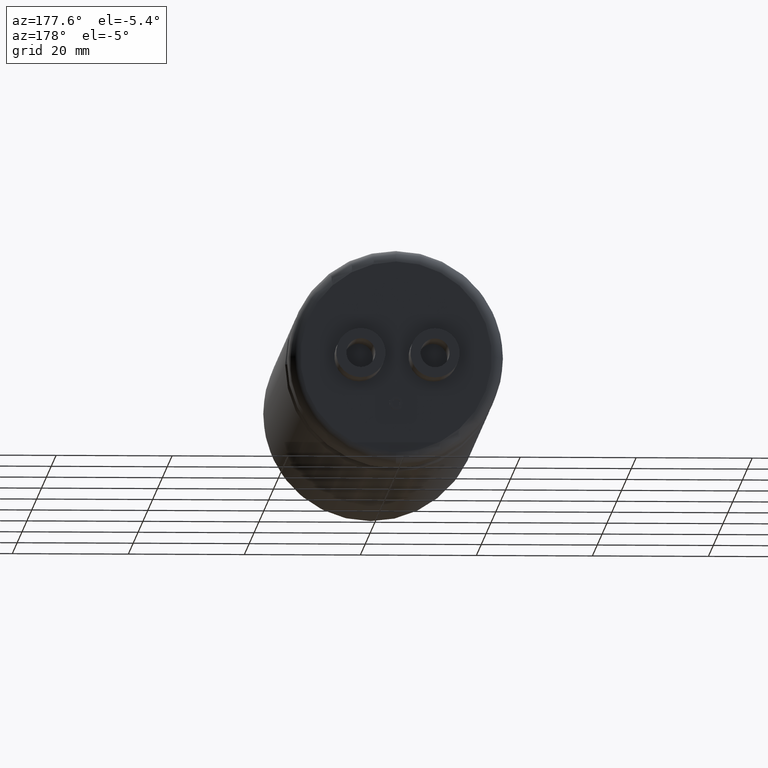
[diagram: clean part render]
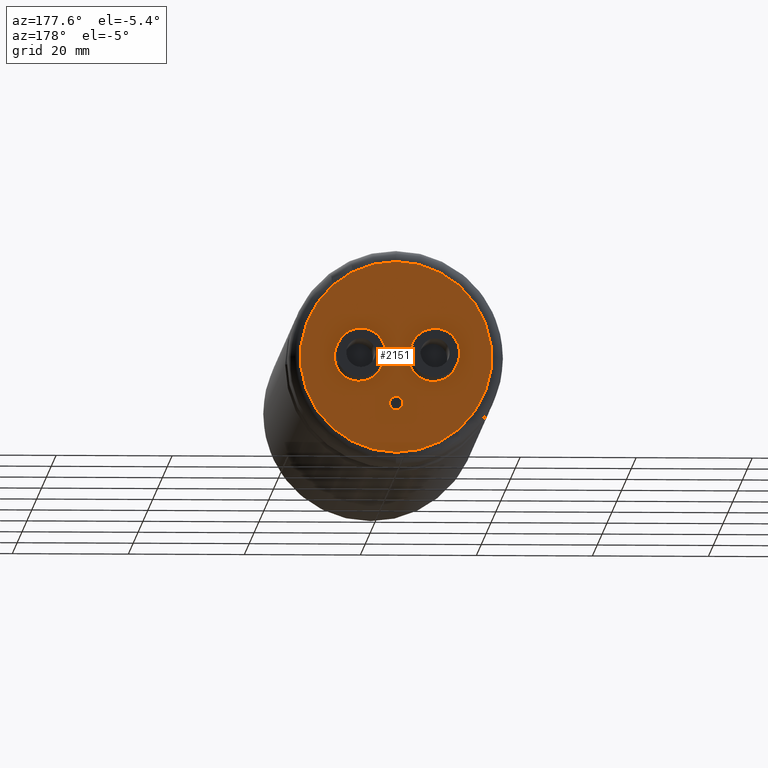
[diagram: same view with one face highlighted and labeled with its STEP entity id]
A machine part, auxiliary view. The second image highlights one B-rep face of the part: STEP entity #2151.
In plain terms, the highlighted planar face has unit normal (0, 1, 0).
Its self-contained STEP definition (entity closure, byte-faithful):
#114 = VERTEX_POINT ( 'NONE', #2407 ) ;
#154 = DIRECTION ( 'NONE',  ( 0.0000000000000000000, 1.000000000000000000, 0.0000000000000000000 ) ) ;
#242 = AXIS2_PLACEMENT_3D ( 'NONE', #2525, #564, #2856 ) ;
#252 = CIRCLE ( 'NONE', #1543, 4.250000000000000000 ) ;
#309 = EDGE_CURVE ( 'NONE', #114, #2955, #2364, .T. ) ;
#335 = VERTEX_POINT ( 'NONE', #3548 ) ;
#464 = DIRECTION ( 'NONE',  ( 0.0000000000000000000, 0.0000000000000000000, 1.000000000000000000 ) ) ;
#481 = CARTESIAN_POINT ( 'NONE',  ( -6.400000000000010100, 107.0000000000000000, 6.938893903907228400E-015 ) ) ;
#520 = FACE_OUTER_BOUND ( 'NONE', #1539, .T. ) ;
#564 = DIRECTION ( 'NONE',  ( 0.0000000000000000000, 1.000000000000000000, 0.0000000000000000000 ) ) ;
#721 = ORIENTED_EDGE ( 'NONE', *, *, #988, .T. ) ;
#734 = ORIENTED_EDGE ( 'NONE', *, *, #1745, .F. ) ;
#825 = AXIS2_PLACEMENT_3D ( 'NONE', #2226, #2880, #3532 ) ;
#831 = VERTEX_POINT ( 'NONE', #2923 ) ;
#871 = DIRECTION ( 'NONE',  ( 0.0000000000000000000, 1.000000000000000000, 0.0000000000000000000 ) ) ;
#937 = CIRCLE ( 'NONE', #1909, 16.50000000000000000 ) ;
#969 = CARTESIAN_POINT ( 'NONE',  ( 0.0000000000000000000, 107.0000000000000000, -8.000000000000000000 ) ) ;
#988 = EDGE_CURVE ( 'NONE', #2586, #1160, #2307, .T. ) ;
#1008 = AXIS2_PLACEMENT_3D ( 'NONE', #1701, #2406, #3056 ) ;
#1032 = DIRECTION ( 'NONE',  ( 0.0000000000000000000, 0.0000000000000000000, 1.000000000000000000 ) ) ;
#1052 = PLANE ( 'NONE',  #3340 ) ;
#1160 = VERTEX_POINT ( 'NONE', #3684 ) ;
#1213 = EDGE_CURVE ( 'NONE', #1160, #2586, #937, .T. ) ;
#1304 = CIRCLE ( 'NONE', #2951, 1.134966047718248800 ) ;
#1424 = ORIENTED_EDGE ( 'NONE', *, *, #1213, .T. ) ;
#1539 = EDGE_LOOP ( 'NONE', ( #721, #1424 ) ) ;
#1543 = AXIS2_PLACEMENT_3D ( 'NONE', #481, #154, #464 ) ;
#1564 = DIRECTION ( 'NONE',  ( 0.0000000000000000000, 0.0000000000000000000, 1.000000000000000000 ) ) ;
#1628 = VERTEX_POINT ( 'NONE', #1984 ) ;
#1680 = CIRCLE ( 'NONE', #2266, 4.250000000000000000 ) ;
#1701 = CARTESIAN_POINT ( 'NONE',  ( 0.0000000000000000000, 107.0000000000000000, 0.0000000000000000000 ) ) ;
#1715 = CARTESIAN_POINT ( 'NONE',  ( 0.0000000000000000000, 107.0000000000000000, 0.0000000000000000000 ) ) ;
#1745 = EDGE_CURVE ( 'NONE', #2955, #114, #1680, .T. ) ;
#1909 = AXIS2_PLACEMENT_3D ( 'NONE', #1715, #3007, #3088 ) ;
#1984 = CARTESIAN_POINT ( 'NONE',  ( -6.400000000000009200, 107.0000000000000000, 4.250000000000007100 ) ) ;
#2075 = CARTESIAN_POINT ( 'NONE',  ( 6.400000000000010100, 107.0000000000000000, 6.938893903907228400E-015 ) ) ;
#2151 = ADVANCED_FACE ( 'NONE', ( #4002, #520, #4215, #3905 ), #1052, .T. ) ;
#2174 = EDGE_CURVE ( 'NONE', #831, #1628, #2325, .T. ) ;
#2207 = EDGE_CURVE ( 'NONE', #335, #3327, #4162, .T. ) ;
#2226 = CARTESIAN_POINT ( 'NONE',  ( -6.400000000000010100, 107.0000000000000000, 6.938893903907228400E-015 ) ) ;
#2266 = AXIS2_PLACEMENT_3D ( 'NONE', #2075, #3355, #1032 ) ;
#2307 = CIRCLE ( 'NONE', #1008, 16.50000000000000000 ) ;
#2325 = CIRCLE ( 'NONE', #825, 4.250000000000000000 ) ;
#2364 = CIRCLE ( 'NONE', #242, 4.250000000000000000 ) ;
#2406 = DIRECTION ( 'NONE',  ( 0.0000000000000000000, 1.000000000000000000, 0.0000000000000000000 ) ) ;
#2407 = CARTESIAN_POINT ( 'NONE',  ( 6.400000000000010100, 107.0000000000000000, -4.249999999999993800 ) ) ;
#2474 = CARTESIAN_POINT ( 'NONE',  ( 0.0000000000000000000, 107.0000000000000000, 16.50000000000000000 ) ) ;
#2503 = CARTESIAN_POINT ( 'NONE',  ( 0.0000000000000000000, 107.0000000000000000, -9.134966047718249300 ) ) ;
#2511 = AXIS2_PLACEMENT_3D ( 'NONE', #3182, #871, #1564 ) ;
#2525 = CARTESIAN_POINT ( 'NONE',  ( 6.400000000000010100, 107.0000000000000000, 6.938893903907228400E-015 ) ) ;
#2586 = VERTEX_POINT ( 'NONE', #2474 ) ;
#2623 = ORIENTED_EDGE ( 'NONE', *, *, #2207, .F. ) ;
#2629 = ORIENTED_EDGE ( 'NONE', *, *, #4225, .F. ) ;
#2712 = DIRECTION ( 'NONE',  ( 0.0000000000000000000, 1.000000000000000000, 0.0000000000000000000 ) ) ;
#2856 = DIRECTION ( 'NONE',  ( 0.0000000000000000000, 0.0000000000000000000, 1.000000000000000000 ) ) ;
#2880 = DIRECTION ( 'NONE',  ( 0.0000000000000000000, 1.000000000000000000, 0.0000000000000000000 ) ) ;
#2923 = CARTESIAN_POINT ( 'NONE',  ( -6.400000000000010100, 107.0000000000000000, -4.249999999999993800 ) ) ;
#2951 = AXIS2_PLACEMENT_3D ( 'NONE', #969, #2975, #3588 ) ;
#2955 = VERTEX_POINT ( 'NONE', #4250 ) ;
#2975 = DIRECTION ( 'NONE',  ( 0.0000000000000000000, 1.000000000000000000, 0.0000000000000000000 ) ) ;
#3000 = ORIENTED_EDGE ( 'NONE', *, *, #4084, .F. ) ;
#3007 = DIRECTION ( 'NONE',  ( 0.0000000000000000000, 1.000000000000000000, 0.0000000000000000000 ) ) ;
#3045 = DIRECTION ( 'NONE',  ( 0.0000000000000000000, -0.0000000000000000000, 1.000000000000000000 ) ) ;
#3056 = DIRECTION ( 'NONE',  ( 0.0000000000000000000, 0.0000000000000000000, 1.000000000000000000 ) ) ;
#3088 = DIRECTION ( 'NONE',  ( 0.0000000000000000000, 0.0000000000000000000, 1.000000000000000000 ) ) ;
#3182 = CARTESIAN_POINT ( 'NONE',  ( 0.0000000000000000000, 107.0000000000000000, -8.000000000000000000 ) ) ;
#3201 = EDGE_LOOP ( 'NONE', ( #3000, #2623 ) ) ;
#3244 = EDGE_LOOP ( 'NONE', ( #4234, #2629 ) ) ;
#3327 = VERTEX_POINT ( 'NONE', #2503 ) ;
#3340 = AXIS2_PLACEMENT_3D ( 'NONE', #4029, #2712, #3045 ) ;
#3355 = DIRECTION ( 'NONE',  ( 0.0000000000000000000, 1.000000000000000000, 0.0000000000000000000 ) ) ;
#3438 = EDGE_LOOP ( 'NONE', ( #3713, #734 ) ) ;
#3532 = DIRECTION ( 'NONE',  ( 0.0000000000000000000, 0.0000000000000000000, 1.000000000000000000 ) ) ;
#3548 = CARTESIAN_POINT ( 'NONE',  ( 1.389932537479075700E-016, 107.0000000000000000, -6.865033952281751600 ) ) ;
#3588 = DIRECTION ( 'NONE',  ( 0.0000000000000000000, 0.0000000000000000000, 1.000000000000000000 ) ) ;
#3684 = CARTESIAN_POINT ( 'NONE',  ( 2.143131898507868200E-015, 107.0000000000000000, -16.50000000000000000 ) ) ;
#3713 = ORIENTED_EDGE ( 'NONE', *, *, #309, .F. ) ;
#3905 = FACE_BOUND ( 'NONE', #3201, .T. ) ;
#4002 = FACE_BOUND ( 'NONE', #3438, .T. ) ;
#4029 = CARTESIAN_POINT ( 'NONE',  ( 0.0000000000000000000, 107.0000000000000000, 0.0000000000000000000 ) ) ;
#4084 = EDGE_CURVE ( 'NONE', #3327, #335, #1304, .T. ) ;
#4162 = CIRCLE ( 'NONE', #2511, 1.134966047718248800 ) ;
#4215 = FACE_BOUND ( 'NONE', #3244, .T. ) ;
#4225 = EDGE_CURVE ( 'NONE', #1628, #831, #252, .T. ) ;
#4234 = ORIENTED_EDGE ( 'NONE', *, *, #2174, .F. ) ;
#4250 = CARTESIAN_POINT ( 'NONE',  ( 6.400000000000011000, 107.0000000000000000, 4.250000000000007100 ) ) ;